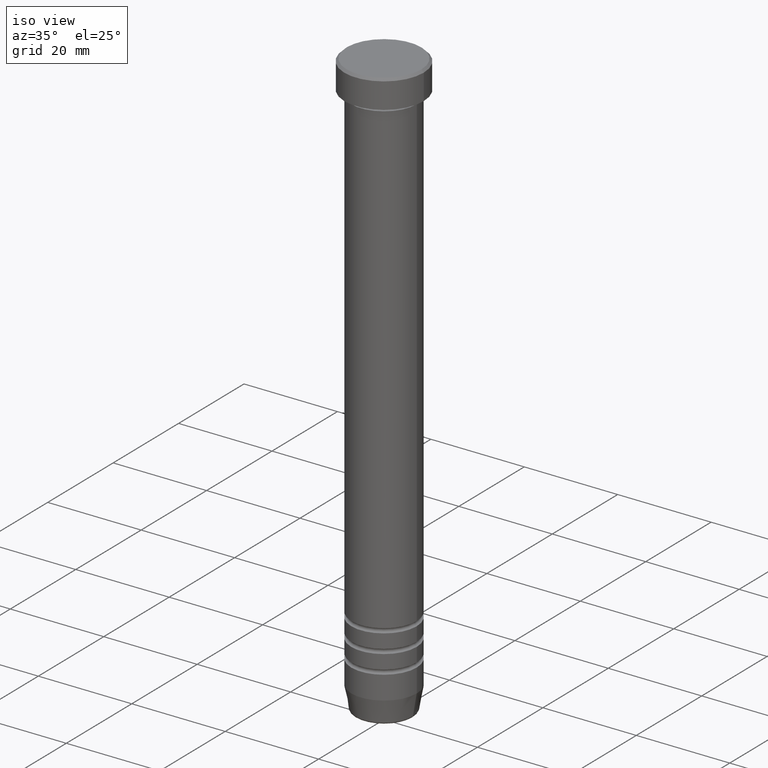
[diagram: clean part render]
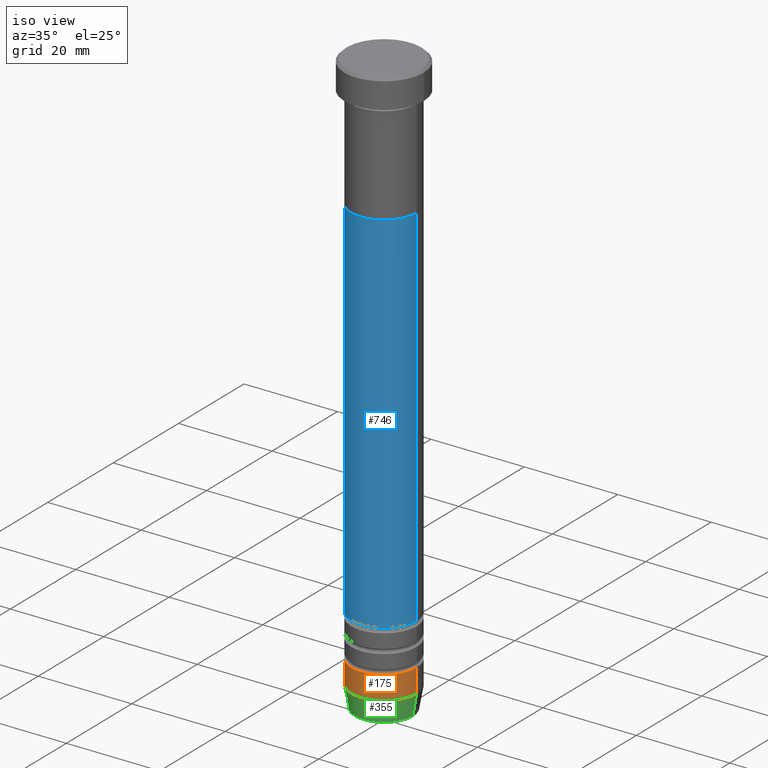
[diagram: same view with three faces highlighted in distinct colors, each labeled with its STEP entity id]
A machine part, iso view with three faces highlighted in distinct colors.
Their STEP definitions:

[orange] entity #175 — the highlighted cylindrical surface (partial cylindrical patch) has radius 7 mm, axis along (-0, -0, 1).
#14 = VERTEX_POINT ( 'NONE', #130 ) ;
#64 = DIRECTION ( 'NONE',  ( 1.000000000000000000, 0.000000000000000000, 0.000000000000000000 ) ) ;
#129 = FACE_OUTER_BOUND ( 'NONE', #760, .T. ) ;
#130 = CARTESIAN_POINT ( 'NONE',  ( 6.999999999999997335, 0.000000000000000000, -116.0000000000000000 ) ) ;
#143 = EDGE_CURVE ( 'NONE', #405, #14, #549, .T. ) ;
#175 = ADVANCED_FACE ( 'NONE', ( #129 ), #309, .T. ) ;
#243 = CARTESIAN_POINT ( 'NONE',  ( -6.999999999999997335, 8.572527594031470232E-16, -116.0000000000000000 ) ) ;
#279 = CIRCLE ( 'NONE', #1110, 6.999999999999997335 ) ;
#309 = CYLINDRICAL_SURFACE ( 'NONE', #838, 6.999999999999997335 ) ;
#367 = EDGE_CURVE ( 'NONE', #752, #14, #279, .T. ) ;
#405 = VERTEX_POINT ( 'NONE', #883 ) ;
#512 = CARTESIAN_POINT ( 'NONE',  ( 0.000000000000000000, 0.000000000000000000, -121.0000000000000000 ) ) ;
#549 = LINE ( 'NONE', #907, #1032 ) ;
#600 = CARTESIAN_POINT ( 'NONE',  ( -6.999999999999997335, 8.572527594031470232E-16, 0.000000000000000000 ) ) ;
#628 = VERTEX_POINT ( 'NONE', #721 ) ;
#667 = DIRECTION ( 'NONE',  ( -0.000000000000000000, -0.000000000000000000, 1.000000000000000000 ) ) ;
#677 = AXIS2_PLACEMENT_3D ( 'NONE', #512, #860, #64 ) ;
#701 = CARTESIAN_POINT ( 'NONE',  ( 0.000000000000000000, 0.000000000000000000, 0.000000000000000000 ) ) ;
#721 = CARTESIAN_POINT ( 'NONE',  ( -6.999999999999997335, 8.572527594031470232E-16, -121.0000000000000000 ) ) ;
#752 = VERTEX_POINT ( 'NONE', #243 ) ;
#760 = EDGE_LOOP ( 'NONE', ( #878, #1044, #890, #970 ) ) ;
#762 = EDGE_CURVE ( 'NONE', #628, #752, #787, .T. ) ;
#787 = LINE ( 'NONE', #600, #811 ) ;
#811 = VECTOR ( 'NONE', #937, 1000.000000000000000 ) ;
#838 = AXIS2_PLACEMENT_3D ( 'NONE', #701, #667, #1041 ) ;
#860 = DIRECTION ( 'NONE',  ( -0.000000000000000000, -0.000000000000000000, 1.000000000000000000 ) ) ;
#871 = CIRCLE ( 'NONE', #677, 6.999999999999997335 ) ;
#878 = ORIENTED_EDGE ( 'NONE', *, *, #762, .F. ) ;
#883 = CARTESIAN_POINT ( 'NONE',  ( 6.999999999999997335, 0.000000000000000000, -121.0000000000000000 ) ) ;
#890 = ORIENTED_EDGE ( 'NONE', *, *, #143, .T. ) ;
#907 = CARTESIAN_POINT ( 'NONE',  ( 6.999999999999997335, 0.000000000000000000, 0.000000000000000000 ) ) ;
#937 = DIRECTION ( 'NONE',  ( -0.000000000000000000, -0.000000000000000000, 1.000000000000000000 ) ) ;
#970 = ORIENTED_EDGE ( 'NONE', *, *, #367, .F. ) ;
#977 = DIRECTION ( 'NONE',  ( -0.000000000000000000, -0.000000000000000000, 1.000000000000000000 ) ) ;
#1032 = VECTOR ( 'NONE', #1079, 1000.000000000000000 ) ;
#1041 = DIRECTION ( 'NONE',  ( 1.000000000000000000, 0.000000000000000000, 0.000000000000000000 ) ) ;
#1044 = ORIENTED_EDGE ( 'NONE', *, *, #1102, .T. ) ;
#1059 = CARTESIAN_POINT ( 'NONE',  ( 0.000000000000000000, 0.000000000000000000, -116.0000000000000000 ) ) ;
#1079 = DIRECTION ( 'NONE',  ( -0.000000000000000000, -0.000000000000000000, 1.000000000000000000 ) ) ;
#1102 = EDGE_CURVE ( 'NONE', #628, #405, #871, .T. ) ;
#1110 = AXIS2_PLACEMENT_3D ( 'NONE', #1059, #977, #1138 ) ;
#1138 = DIRECTION ( 'NONE',  ( 1.000000000000000000, 0.000000000000000000, 0.000000000000000000 ) ) ;

[blue] entity #746 — the highlighted cylindrical surface (partial cylindrical patch) has radius 7 mm, axis along (-0, -0, 1).
#4 = EDGE_CURVE ( 'NONE', #922, #1099, #596, .T. ) ;
#23 = DIRECTION ( 'NONE',  ( -0.000000000000000000, -0.000000000000000000, 1.000000000000000000 ) ) ;
#50 = LINE ( 'NONE', #1111, #825 ) ;
#60 = DIRECTION ( 'NONE',  ( -0.000000000000000000, -0.000000000000000000, 1.000000000000000000 ) ) ;
#117 = CARTESIAN_POINT ( 'NONE',  ( 0.000000000000000000, 0.000000000000000000, -28.00000000000000000 ) ) ;
#194 = ORIENTED_EDGE ( 'NONE', *, *, #4, .T. ) ;
#225 = DIRECTION ( 'NONE',  ( -0.000000000000000000, -0.000000000000000000, 1.000000000000000000 ) ) ;
#260 = CIRCLE ( 'NONE', #509, 6.999999999999999112 ) ;
#270 = VERTEX_POINT ( 'NONE', #705 ) ;
#316 = CIRCLE ( 'NONE', #1055, 6.999999999999990230 ) ;
#411 = DIRECTION ( 'NONE',  ( 1.000000000000000000, 0.000000000000000000, 0.000000000000000000 ) ) ;
#435 = ORIENTED_EDGE ( 'NONE', *, *, #987, .F. ) ;
#474 = EDGE_CURVE ( 'NONE', #545, #1099, #260, .T. ) ;
#502 = ORIENTED_EDGE ( 'NONE', *, *, #528, .T. ) ;
#509 = AXIS2_PLACEMENT_3D ( 'NONE', #117, #225, #1112 ) ;
#528 = EDGE_CURVE ( 'NONE', #270, #922, #316, .T. ) ;
#545 = VERTEX_POINT ( 'NONE', #681 ) ;
#596 = LINE ( 'NONE', #1100, #1148 ) ;
#605 = FACE_OUTER_BOUND ( 'NONE', #1008, .T. ) ;
#681 = CARTESIAN_POINT ( 'NONE',  ( -6.999999999999999112, 8.572527594031472204E-16, -28.00000000000000000 ) ) ;
#687 = CARTESIAN_POINT ( 'NONE',  ( 6.999999999999999112, 0.000000000000000000, -28.00000000000000000 ) ) ;
#705 = CARTESIAN_POINT ( 'NONE',  ( -6.999999999999990230, 8.572527594031464315E-16, -107.0000000000000142 ) ) ;
#746 = ADVANCED_FACE ( 'NONE', ( #605 ), #877, .T. ) ;
#795 = CARTESIAN_POINT ( 'NONE',  ( 0.000000000000000000, 0.000000000000000000, 0.000000000000000000 ) ) ;
#798 = ORIENTED_EDGE ( 'NONE', *, *, #474, .F. ) ;
#825 = VECTOR ( 'NONE', #23, 1000.000000000000000 ) ;
#877 = CYLINDRICAL_SURFACE ( 'NONE', #1074, 6.999999999999994671 ) ;
#908 = CARTESIAN_POINT ( 'NONE',  ( 6.999999999999990230, 0.000000000000000000, -107.0000000000000142 ) ) ;
#922 = VERTEX_POINT ( 'NONE', #908 ) ;
#930 = DIRECTION ( 'NONE',  ( -0.000000000000000000, -0.000000000000000000, 1.000000000000000000 ) ) ;
#947 = DIRECTION ( 'NONE',  ( 1.000000000000000000, 0.000000000000000000, 0.000000000000000000 ) ) ;
#987 = EDGE_CURVE ( 'NONE', #270, #545, #50, .T. ) ;
#1008 = EDGE_LOOP ( 'NONE', ( #435, #502, #194, #798 ) ) ;
#1055 = AXIS2_PLACEMENT_3D ( 'NONE', #1130, #60, #411 ) ;
#1074 = AXIS2_PLACEMENT_3D ( 'NONE', #795, #1134, #947 ) ;
#1099 = VERTEX_POINT ( 'NONE', #687 ) ;
#1100 = CARTESIAN_POINT ( 'NONE',  ( 6.999999999999994671, 0.000000000000000000, 0.000000000000000000 ) ) ;
#1111 = CARTESIAN_POINT ( 'NONE',  ( -6.999999999999994671, 8.572527594031466287E-16, 0.000000000000000000 ) ) ;
#1112 = DIRECTION ( 'NONE',  ( 1.000000000000000000, 0.000000000000000000, 0.000000000000000000 ) ) ;
#1130 = CARTESIAN_POINT ( 'NONE',  ( 0.000000000000000000, 0.000000000000000000, -107.0000000000000142 ) ) ;
#1134 = DIRECTION ( 'NONE',  ( -0.000000000000000000, -0.000000000000000000, 1.000000000000000000 ) ) ;
#1148 = VECTOR ( 'NONE', #930, 1000.000000000000000 ) ;

[green] entity #355 — the highlighted conical surface has half-angle 10 deg.
#7 = ORIENTED_EDGE ( 'NONE', *, *, #1082, .T. ) ;
#10 = ORIENTED_EDGE ( 'NONE', *, *, #703, .F. ) ;
#47 = CARTESIAN_POINT ( 'NONE',  ( -6.118365096457670127, 7.492836231391771693E-16, -126.0000000000000000 ) ) ;
#64 = DIRECTION ( 'NONE',  ( 1.000000000000000000, 0.000000000000000000, 0.000000000000000000 ) ) ;
#91 = FACE_OUTER_BOUND ( 'NONE', #716, .T. ) ;
#137 = DIRECTION ( 'NONE',  ( -0.000000000000000000, -0.000000000000000000, 1.000000000000000000 ) ) ;
#160 = DIRECTION ( 'NONE',  ( 0.1736481776669307753, 0.000000000000000000, 0.9848077530122080203 ) ) ;
#169 = VERTEX_POINT ( 'NONE', #1095 ) ;
#179 = LINE ( 'NONE', #47, #261 ) ;
#220 = VECTOR ( 'NONE', #160, 1000.000000000000000 ) ;
#261 = VECTOR ( 'NONE', #329, 1000.000000000000000 ) ;
#301 = AXIS2_PLACEMENT_3D ( 'NONE', #371, #738, #876 ) ;
#329 = DIRECTION ( 'NONE',  ( -0.1736481776669307753, 2.126576849575776845E-17, 0.9848077530122080203 ) ) ;
#332 = EDGE_CURVE ( 'NONE', #169, #405, #634, .T. ) ;
#355 = ADVANCED_FACE ( 'NONE', ( #91 ), #775, .T. ) ;
#371 = CARTESIAN_POINT ( 'NONE',  ( 0.000000000000000000, 0.000000000000000000, -126.0000000000000000 ) ) ;
#405 = VERTEX_POINT ( 'NONE', #883 ) ;
#419 = DIRECTION ( 'NONE',  ( -1.000000000000000000, 0.000000000000000000, 0.000000000000000000 ) ) ;
#512 = CARTESIAN_POINT ( 'NONE',  ( 0.000000000000000000, 0.000000000000000000, -121.0000000000000000 ) ) ;
#582 = AXIS2_PLACEMENT_3D ( 'NONE', #849, #137, #419 ) ;
#628 = VERTEX_POINT ( 'NONE', #721 ) ;
#634 = LINE ( 'NONE', #983, #220 ) ;
#642 = ORIENTED_EDGE ( 'NONE', *, *, #332, .T. ) ;
#668 = VERTEX_POINT ( 'NONE', #1052 ) ;
#677 = AXIS2_PLACEMENT_3D ( 'NONE', #512, #860, #64 ) ;
#703 = EDGE_CURVE ( 'NONE', #668, #628, #179, .T. ) ;
#716 = EDGE_LOOP ( 'NONE', ( #10, #7, #642, #735 ) ) ;
#721 = CARTESIAN_POINT ( 'NONE',  ( -6.999999999999997335, 8.572527594031470232E-16, -121.0000000000000000 ) ) ;
#735 = ORIENTED_EDGE ( 'NONE', *, *, #1102, .F. ) ;
#738 = DIRECTION ( 'NONE',  ( -0.000000000000000000, -0.000000000000000000, 1.000000000000000000 ) ) ;
#775 = CONICAL_SURFACE ( 'NONE', #301, 6.118365096457670127, 0.1745329251994333919 ) ;
#849 = CARTESIAN_POINT ( 'NONE',  ( 0.000000000000000000, 0.000000000000000000, -125.5868240888334526 ) ) ;
#860 = DIRECTION ( 'NONE',  ( -0.000000000000000000, -0.000000000000000000, 1.000000000000000000 ) ) ;
#871 = CIRCLE ( 'NONE', #677, 6.999999999999997335 ) ;
#876 = DIRECTION ( 'NONE',  ( 1.000000000000000000, 0.000000000000000000, 0.000000000000000000 ) ) ;
#883 = CARTESIAN_POINT ( 'NONE',  ( 6.999999999999997335, 0.000000000000000000, -121.0000000000000000 ) ) ;
#983 = CARTESIAN_POINT ( 'NONE',  ( 6.118365096457670127, 0.000000000000000000, -126.0000000000000000 ) ) ;
#1052 = CARTESIAN_POINT ( 'NONE',  ( -6.191219157375138948, 8.077292158965353462E-16, -125.5868240888334526 ) ) ;
#1082 = EDGE_CURVE ( 'NONE', #668, #169, #1108, .T. ) ;
#1095 = CARTESIAN_POINT ( 'NONE',  ( 6.191219157375138948, 0.000000000000000000, -125.5868240888334526 ) ) ;
#1102 = EDGE_CURVE ( 'NONE', #628, #405, #871, .T. ) ;
#1108 = CIRCLE ( 'NONE', #582, 6.191219157375138060 ) ;